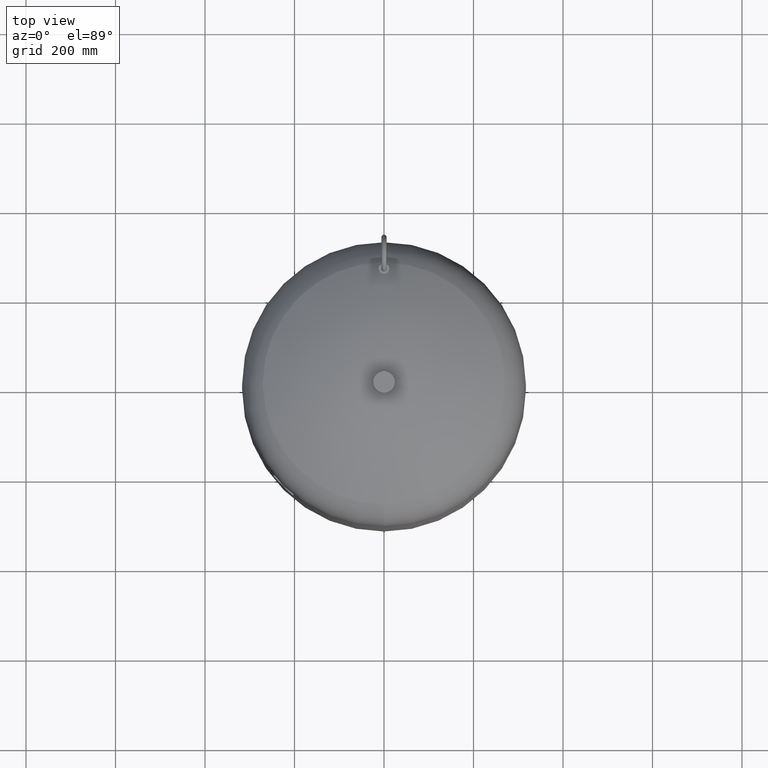
[diagram: clean part render]
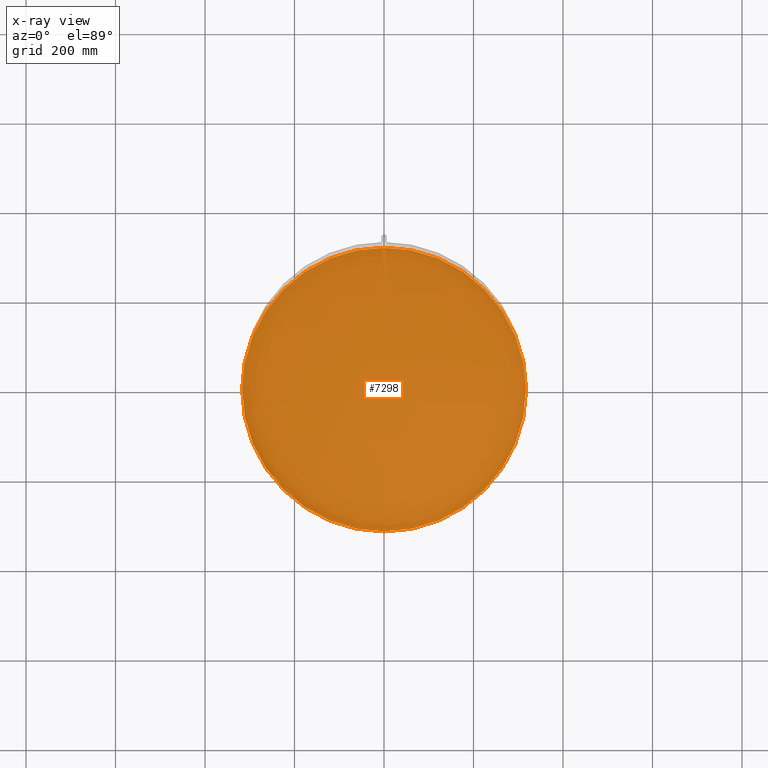
[diagram: x-ray — body ghosted, one internal face saturated and labeled with its STEP entity id]
A machine part, top view, then the same camera in x-ray: the body is ghosted and one INTERNAL B-rep face — a face not visible from any outside direction — is saturated and labeled: STEP entity #7298.
In plain terms, the highlighted planar face has unit normal (0, 0, 1).
Its self-contained STEP definition (entity closure, byte-faithful):
#7136=CARTESIAN_POINT('',(-317.0,-2.975892E-014,351.999999999999890));
#7137=VERTEX_POINT('',#7136);
#7146=CARTESIAN_POINT('',(317.0,9.061104E-015,351.999999999999940));
#7147=VERTEX_POINT('',#7146);
#7148=CARTESIAN_POINT('',(-1.558411E-014,-2.975892E-014,351.999999999999890));
#7149=DIRECTION('',(0.0,0.0,1.0));
#7150=DIRECTION('',(-1.0,0.0,0.0));
#7151=AXIS2_PLACEMENT_3D('',#7148,#7149,#7150);
#7152=CIRCLE('',#7151,317.0);
#7153=EDGE_CURVE('',#7147,#7137,#7152,.T.);
#7279=CARTESIAN_POINT('',(-1.558411E-014,-2.975892E-014,351.999999999999890));
#7280=DIRECTION('',(0.0,0.0,1.0));
#7281=DIRECTION('',(-1.0,0.0,0.0));
#7282=AXIS2_PLACEMENT_3D('',#7279,#7280,#7281);
#7283=CIRCLE('',#7282,317.0);
#7284=EDGE_CURVE('',#7137,#7147,#7283,.T.);
#7289=CARTESIAN_POINT('',(-158.500000000000000,-2.975892E-014,351.999999999999940));
#7290=DIRECTION('',(0.0,0.0,1.0));
#7291=DIRECTION('',(0.0,-1.0,0.0));
#7292=AXIS2_PLACEMENT_3D('',#7289,#7290,#7291);
#7293=PLANE('',#7292);
#7294=ORIENTED_EDGE('',*,*,#7284,.T.);
#7295=ORIENTED_EDGE('',*,*,#7153,.T.);
#7296=EDGE_LOOP('',(#7294,#7295));
#7297=FACE_OUTER_BOUND('',#7296,.T.);
#7298=ADVANCED_FACE('',(#7297),#7293,.T.);